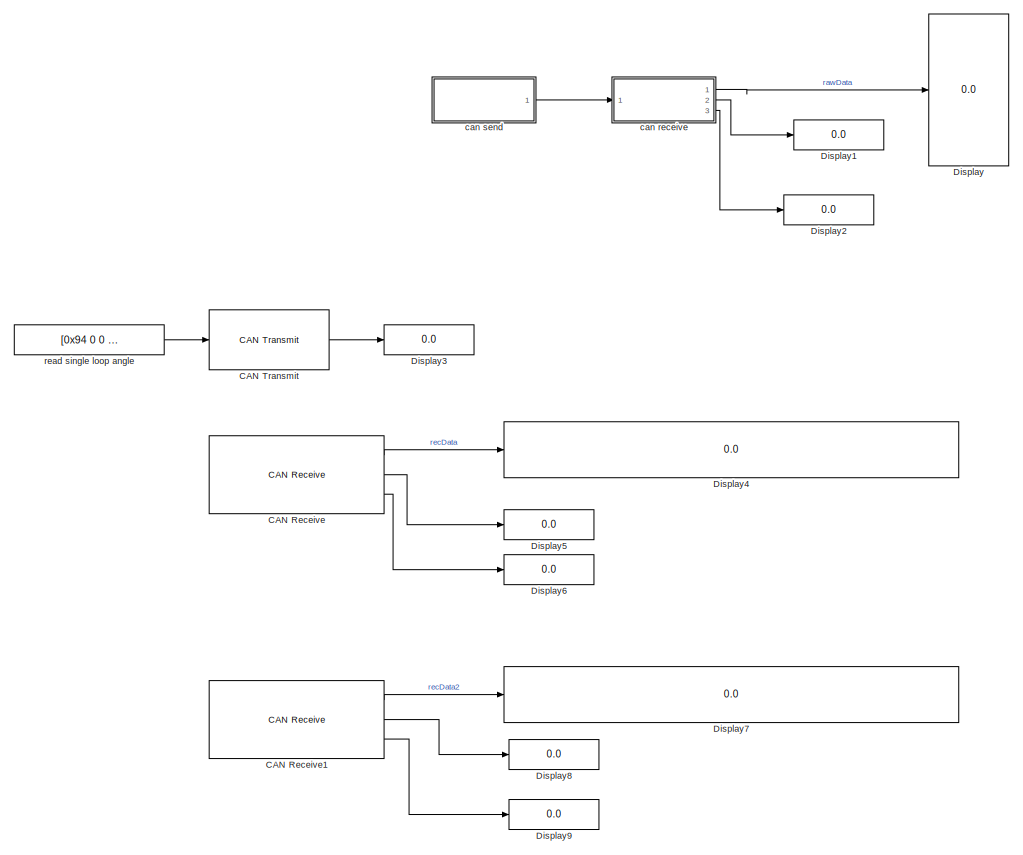
[diagram: root canvas - part 1/3, top right region]
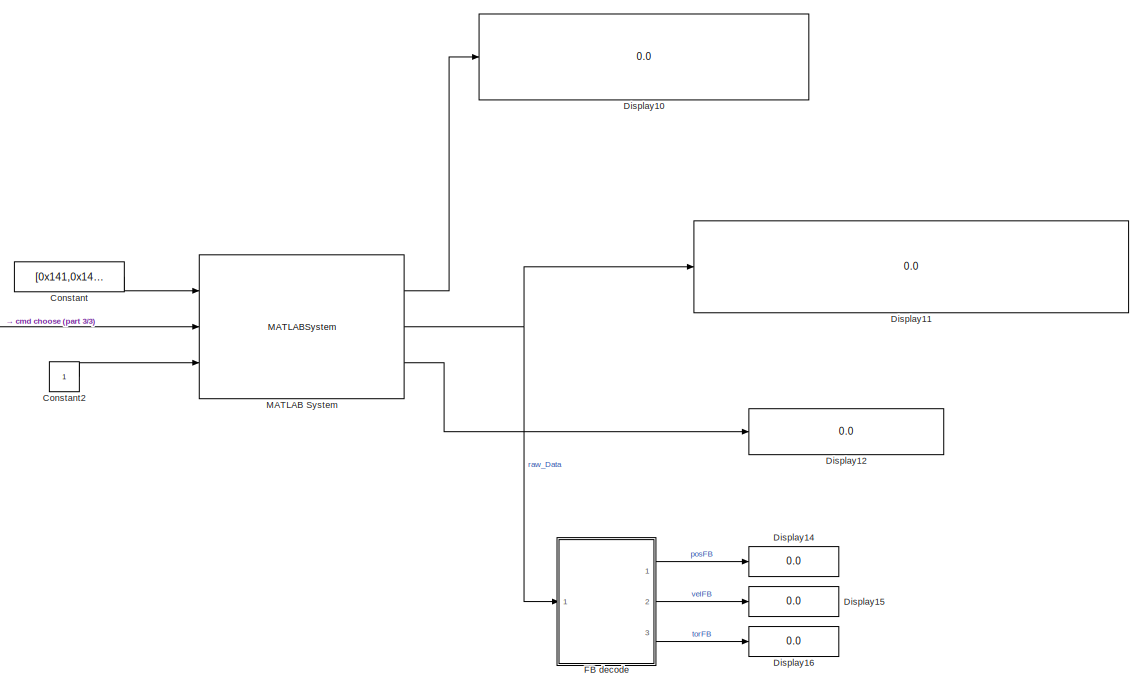
[diagram: root canvas - part 2/3, bottom right region]
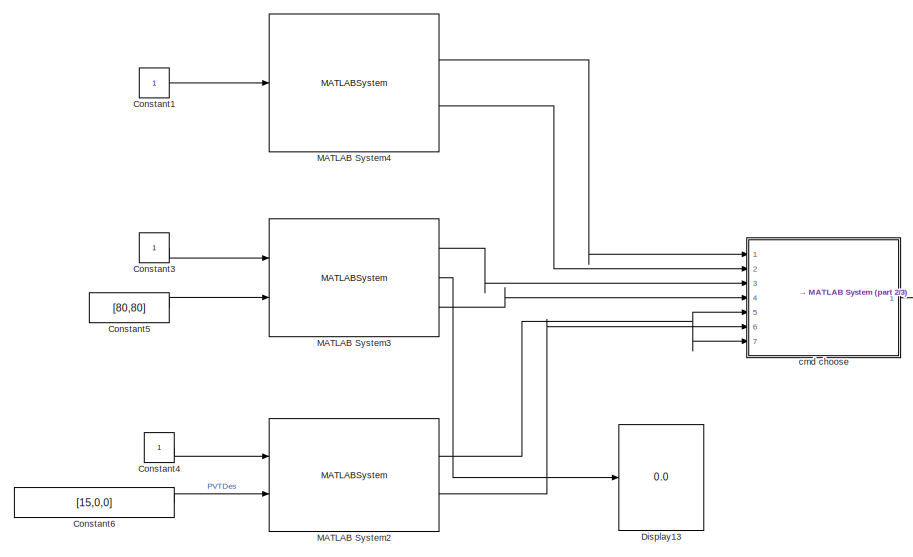
[diagram: root canvas - part 3/3, bottom left region]
MODEL slx_a6c7c3b08699
KIND model
CONFIG AbsTol = auto
CONFIG EnableMultiTasking = on
CONFIG FixedStep = 0.005
CONFIG MaxStep = auto
CONFIG MinStep = auto
CONFIG RelTol = 1e-3
CONFIG SampleTimeConstraint = Unconstrained
CONFIG SolverName = FixedStepAuto
CONFIG StartTime = 0.0
CONFIG StopTime = 300
BLOCK [Reference] CAN Receive  REF=raspberrypiCommlib/CAN Receive
  Commented = on
  Ports = [0, 3]
  SourceBlock = raspberrypiCommlib/CAN Receive
  SourceProductBaseCode = RASPPI
  SourceType = codertarget.raspi.internal.CANReceive
BLOCK [Reference] CAN Receive1  REF=raspberrypiCommlib/CAN Receive
  Commented = on
  Ports = [0, 3]
  SourceBlock = raspberrypiCommlib/CAN Receive
  SourceProductBaseCode = RASPPI
  SourceType = codertarget.raspi.internal.CANReceive
BLOCK [Reference] CAN Transmit  REF=raspberrypiCommlib/CAN Transmit
  Commented = on
  Ports = [1, 1]
  SourceBlock = raspberrypiCommlib/CAN Transmit
  SourceProductBaseCode = RASPPI
  SourceType = codertarget.raspi.internal.CANTransmit
BLOCK [Constant] Constant
  OutDataTypeStr = int32
  Value = [0x141,0x141]
BLOCK [Constant] Constant1
BLOCK [Constant] Constant2
  OutDataTypeStr = int32
BLOCK [Constant] Constant3
BLOCK [Constant] Constant4
BLOCK [Constant] Constant5
  Value = [80,80]
BLOCK [Constant] Constant6
  Value = [15,0,0]
BLOCK [Display] Display
  Commented = on
  Decimation = 1
  Format = hex (Stored Integer)
  Ports = [1]
BLOCK [Display] Display1
  Commented = on
  Decimation = 1
  Ports = [1]
BLOCK [Display] Display10
  Decimation = 1
  Format = hex (Stored Integer)
  Ports = [1]
BLOCK [Display] Display11
  Decimation = 1
  Format = hex (Stored Integer)
  Ports = [1]
BLOCK [Display] Display12
  Decimation = 1
  Format = hex (Stored Integer)
  Ports = [1]
BLOCK [Display] Display13
  Decimation = 1
  Ports = [1]
BLOCK [Display] Display14
  Decimation = 1
  Ports = [1]
BLOCK [Display] Display15
  Decimation = 1
  Ports = [1]
BLOCK [Display] Display16
  Decimation = 1
  Ports = [1]
BLOCK [Display] Display2
  Commented = on
  Decimation = 1
  Ports = [1]
BLOCK [Display] Display3
  Commented = on
  Decimation = 1
  Ports = [1]
BLOCK [Display] Display4
  Commented = on
  Decimation = 1
  Format = hex (Stored Integer)
  Ports = [1]
BLOCK [Display] Display5
  Commented = on
  Decimation = 1
  Ports = [1]
BLOCK [Display] Display6
  Commented = on
  Decimation = 1
  Ports = [1]
BLOCK [Display] Display7
  Commented = on
  Decimation = 1
  Format = hex (Stored Integer)
  Ports = [1]
BLOCK [Display] Display8
  Commented = on
  Decimation = 1
  Ports = [1]
BLOCK [Display] Display9
  Commented = on
  Decimation = 1
  Ports = [1]
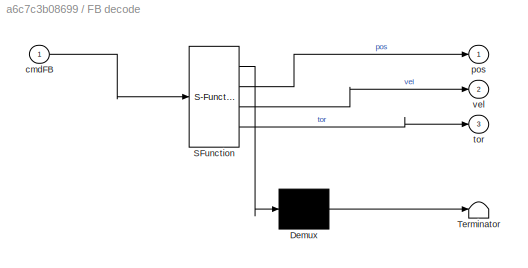
BLOCK [SubSystem] FB decode
  ErrorFcn = Stateflow.Translate.translate
  PermitHierarchicalResolution = ExplicitOnly
  Ports = [1, 3]
  RequestExecContextInheritance = off
  SFBlockType = MATLAB Function
  TreatAsAtomicUnit = on
BLOCK [Demux] FB decode/ Demux 
  Outputs = 1
  Ports = [1, 1]
BLOCK [S-Function] FB decode/ SFunction 
  EnableBusSupport = on
  FunctionName = sf_sfun
  PortCounts = [1 4]
  Ports = [1, 4]
  SFcnIsStateOwnerBlock = off
  SFunctionDeploymentMode = off
  Tag = Stateflow S-Function 4
BLOCK [Terminator] FB decode/ Terminator 
BLOCK [Inport] FB decode/cmdFB
BLOCK [Outport] FB decode/pos
BLOCK [Outport] FB decode/tor
  Port = 3
BLOCK [Outport] FB decode/vel
  Port = 2
BLOCK [MATLABSystem] MATLAB System
  MaskDisplay = disp('CAN_Driver');\nport_label('input',1,'canID_array');\nport_label('input',2,'send_RawData');\nport_label('input',3,'dev_Num');\nport_label('output',1,'recv_ID');\nport_label('output',2,'recv_rawData');\nport_label('output',3,'err');
  MaskType = canSendRecv
  Ports = [3, 3]
  System = canSendRecv
  canPort = can1
BLOCK [MATLABSystem] MATLAB System2
  MaskDisplay = disp('PVTctr');\nport_label('input',1,'EnNum');\nport_label('input',2,'PVTdes');\nport_label('output',1,'cmd');\nport_label('output',2,'cmdEN');
  MaskType = PVTctr
  Ports = [2, 2]
  SimulateUsing = Code generation
  System = PVTctr
BLOCK [MATLABSystem] MATLAB System3
  MaskDisplay = disp('writePVTpara');\nport_label('input',1,'EnNum');\nport_label('input',2,'pdArray');\nport_label('output',1,'cmd');\nport_label('output',2,'paraSet');\nport_label('output',3,'cmdEN');
  MaskType = writePVTpara
  Ports = [2, 3]
  SimulateUsing = Code generation
  System = writePVTpara
BLOCK [MATLABSystem] MATLAB System4
  MaskDisplay = disp('stopMotor');\nport_label('input',1,'EnNum');\nport_label('output',1,'cmd');\nport_label('output',2,'cmdEN');
  MaskType = stopMotor
  Ports = [1, 2]
  SimulateUsing = Code generation
  System = stopMotor
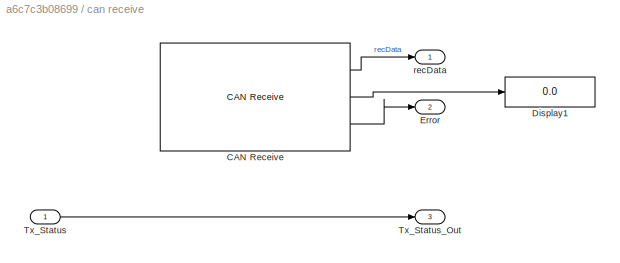
BLOCK [SubSystem] can receive
  Commented = on
  Ports = [1, 3]
  RequestExecContextInheritance = off
  TreatAsAtomicUnit = on
BLOCK [Reference] can receive/CAN Receive  REF=raspberrypiCommlib/CAN Receive
  Ports = [0, 3]
  SourceBlock = raspberrypiCommlib/CAN Receive
  SourceProductBaseCode = RASPPI
  SourceType = codertarget.raspi.internal.CANReceive
BLOCK [Display] can receive/Display1
  Decimation = 1
  Ports = [1]
BLOCK [Outport] can receive/Error
  Port = 2
BLOCK [Inport] can receive/Tx_Status
BLOCK [Outport] can receive/Tx_Status_Out
  Port = 3
BLOCK [Outport] can receive/recData
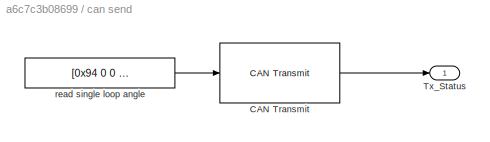
BLOCK [SubSystem] can send
  Commented = on
  Ports = [0, 1]
  RequestExecContextInheritance = off
  TreatAsAtomicUnit = on
BLOCK [Reference] can send/CAN Transmit  REF=raspberrypiCommlib/CAN Transmit
  Ports = [1, 1]
  SourceBlock = raspberrypiCommlib/CAN Transmit
  SourceProductBaseCode = RASPPI
  SourceType = codertarget.raspi.internal.CANTransmit
BLOCK [Outport] can send/Tx_Status
BLOCK [Constant] can send/read single loop angle
  OutDataTypeStr = uint8
  Value = [0x94 0 0 0 0 0 0 0]
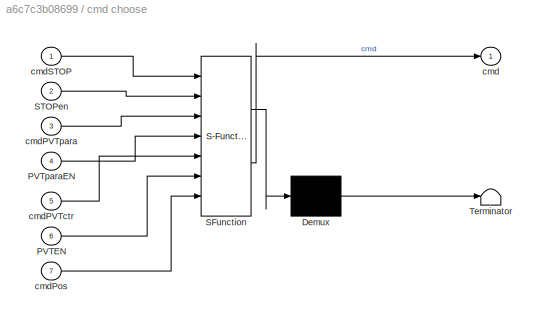
BLOCK [SubSystem] cmd choose
  ErrorFcn = Stateflow.Translate.translate
  PermitHierarchicalResolution = ExplicitOnly
  Ports = [7, 1]
  RequestExecContextInheritance = off
  SFBlockType = MATLAB Function
  TreatAsAtomicUnit = on
BLOCK [Demux] cmd choose/ Demux 
  Outputs = 1
  Ports = [1, 1]
BLOCK [S-Function] cmd choose/ SFunction 
  EnableBusSupport = on
  FunctionName = sf_sfun
  PortCounts = [7 2]
  Ports = [7, 2]
  SFcnIsStateOwnerBlock = off
  SFunctionDeploymentMode = off
  Tag = Stateflow S-Function 3
BLOCK [Terminator] cmd choose/ Terminator 
BLOCK [Inport] cmd choose/PVTEN
  Port = 6
BLOCK [Inport] cmd choose/PVTparaEN
  Port = 4
BLOCK [Inport] cmd choose/STOPen
  Port = 2
BLOCK [Outport] cmd choose/cmd
BLOCK [Inport] cmd choose/cmdPVTctr
  Port = 5
BLOCK [Inport] cmd choose/cmdPVTpara
  Port = 3
BLOCK [Inport] cmd choose/cmdPos
  Port = 7
BLOCK [Inport] cmd choose/cmdSTOP
BLOCK [Constant] read single loop angle
  Commented = on
  OutDataTypeStr = uint8
  Value = [0x94 0 0 0 0 0 0 0]
LINE CAN Receive1:1 -> Display7:1
LINE CAN Receive1:2 -> Display8:1
LINE CAN Receive1:3 -> Display9:1
LINE CAN Receive:1 -> Display4:1
LINE CAN Receive:2 -> Display5:1
LINE CAN Receive:3 -> Display6:1
LINE CAN Transmit:1 -> Display3:1
LINE Constant1:1 -> MATLAB System4:1
LINE Constant2:1 -> MATLAB System:3
LINE Constant3:1 -> MATLAB System3:1
LINE Constant4:1 -> MATLAB System2:1
LINE Constant5:1 -> MATLAB System3:2
LINE Constant6:1 -> MATLAB System2:2
LINE Constant:1 -> MATLAB System:1
LINE FB decode:1 -> Display14:1
LINE FB decode:2 -> Display15:1
LINE FB decode:3 -> Display16:1
NET MATLAB System2:1 -> cmd choose:5, cmd choose:7
LINE MATLAB System2:2 -> cmd choose:6
LINE MATLAB System3:1 -> cmd choose:3
LINE MATLAB System3:2 -> Display13:1
LINE MATLAB System3:3 -> cmd choose:4
LINE MATLAB System4:1 -> cmd choose:1
LINE MATLAB System4:2 -> cmd choose:2
LINE MATLAB System:1 -> Display10:1
NET MATLAB System:2 -> Display11:1, FB decode:1
LINE MATLAB System:3 -> Display12:1
LINE can receive/CAN Receive:1 -> can receive/recData:1
LINE can receive/CAN Receive:2 -> can receive/Display1:1
LINE can receive/CAN Receive:3 -> can receive/Error:1
LINE can receive/Tx_Status:1 -> can receive/Tx_Status_Out:1
LINE can receive:1 -> Display:1
LINE can receive:2 -> Display1:1
LINE can receive:3 -> Display2:1
LINE can send/CAN Transmit:1 -> can send/Tx_Status:1
LINE can send/read single loop angle:1 -> can send/CAN Transmit:1
LINE can send:1 -> can receive:1
LINE cmd choose:1 -> MATLAB System:2
LINE read single loop angle:1 -> CAN Transmit:1
note: NET lines group one-source signal fan-out (src -> all destinations, sorted); 1:1 wires keep LINE
CHART cmd choose states=1 transitions=1
  STATE_LABEL 'eML_blk_kernel()'
  STATE_LABEL 'SCRIPT:\nfunction cmd = fcn(cmdSTOP,STOPen,cmdPVTpara,PVTparaEN,cmdPVTctr,PVTEN,cmdPos)\nif STOPen>0.5\n    cmd=cmdSTOP;\n    return;\nend\nif PVTparaEN>0.5\n    cmd=cmdPVTpara;\n    return;\nend\nif PVTEN>0.5\n    cmd=cmdPVTctr;\n    return;\nend\ncmd=cmdPos;\n'
CHART FB decode states=1 transitions=1
  STATE_LABEL 'eML_blk_kernel()'
  STATE_LABEL "SCRIPT:\nfunction [pos,vel,tor] = fcn(cmdFB)\n%data=[u(2:8);0x00];\n%y = double(typecast(u(7:8),'uint16'))*0.01;\npos = double(typecast(cmdFB(3:4),'int16'))*0.01;\nvel = double(typecast(cmdFB(5:6),'int16'));\ntor = double(typecast(cmdFB(7:8),'int16'))*66/4096;\n\n"
CHART  states=0 transitions=0
CHART  states=0 transitions=0
